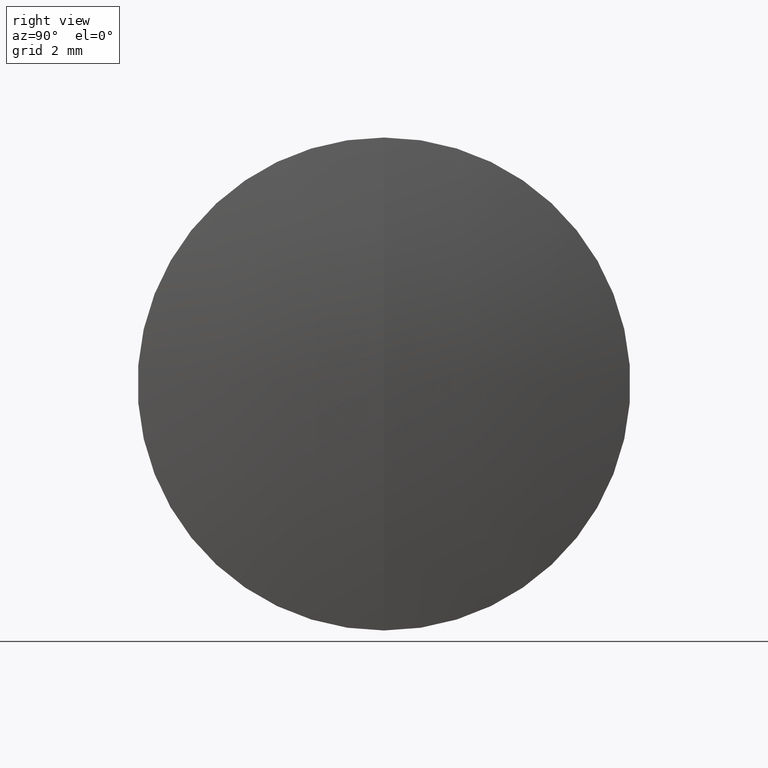
[diagram: clean part render]
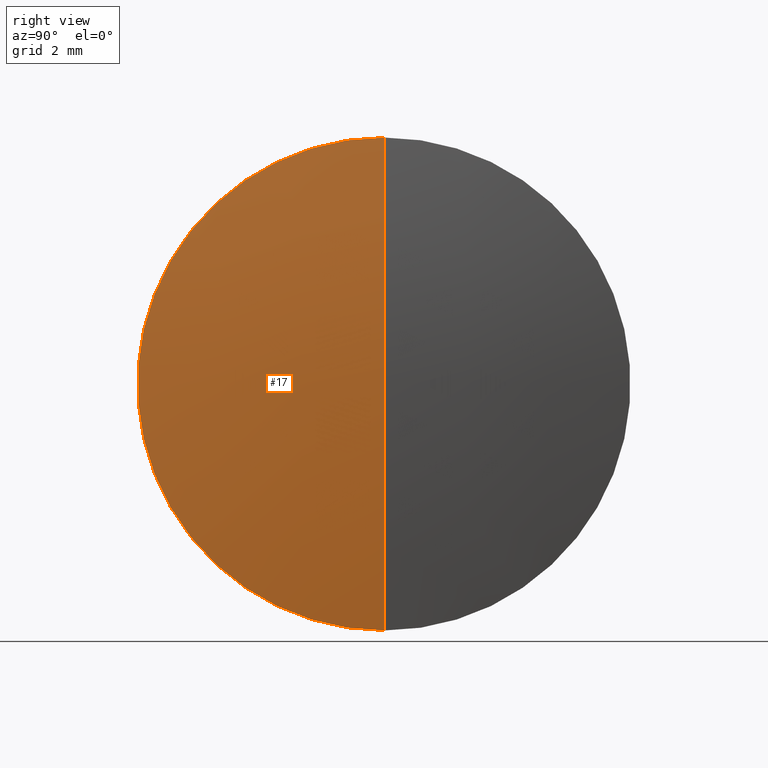
[diagram: same view with one face highlighted and labeled with its STEP entity id]
A machine part, right view. The second image highlights one B-rep face of the part: STEP entity #17.
In plain terms, the highlighted spherical surface has radius 32.651 mm.
Its self-contained STEP definition (entity closure, byte-faithful):
#17 = ADVANCED_FACE ( 'NONE', ( #211 ), #231, .T. ) ;
#19 = VERTEX_POINT ( 'NONE', #77 ) ;
#20 = VERTEX_POINT ( 'NONE', #62 ) ;
#38 = DIRECTION ( 'NONE',  ( -1.000000000000000000, -0.0000000000000000000, -0.0000000000000000000 ) ) ;
#48 = AXIS2_PLACEMENT_3D ( 'NONE', #256, #307, #329 ) ;
#53 = ORIENTED_EDGE ( 'NONE', *, *, #234, .F. ) ;
#62 = CARTESIAN_POINT ( 'NONE',  ( 5.980462902601981800, 6.123233995736762300E-016, -4.999999999999995600 ) ) ;
#65 = EDGE_CURVE ( 'NONE', #157, #19, #96, .T. ) ;
#77 = CARTESIAN_POINT ( 'NONE',  ( 5.980462902601981800, 0.0000000000000000000, 4.999999999999995600 ) ) ;
#89 = CIRCLE ( 'NONE', #252, 32.65100000000000300 ) ;
#96 = CIRCLE ( 'NONE', #48, 32.65100000000000300 ) ;
#98 = DIRECTION ( 'NONE',  ( 0.0000000000000000000, 0.0000000000000000000, 1.000000000000000000 ) ) ;
#113 = AXIS2_PLACEMENT_3D ( 'NONE', #180, #38, #98 ) ;
#119 = CARTESIAN_POINT ( 'NONE',  ( 6.365570678769087100, 0.0000000000000000000, 1.999297131948011600E-015 ) ) ;
#123 = DIRECTION ( 'NONE',  ( 0.0000000000000000000, 0.0000000000000000000, 1.000000000000000000 ) ) ;
#143 = DIRECTION ( 'NONE',  ( -0.0000000000000000000, 1.000000000000000000, 1.224646799147353200E-016 ) ) ;
#147 = ORIENTED_EDGE ( 'NONE', *, *, #308, .F. ) ;
#157 = VERTEX_POINT ( 'NONE', #119 ) ;
#175 = DIRECTION ( 'NONE',  ( 0.0000000000000000000, 1.000000000000000000, 0.0000000000000000000 ) ) ;
#180 = CARTESIAN_POINT ( 'NONE',  ( 5.980462902601981800, 0.0000000000000000000, 0.0000000000000000000 ) ) ;
#200 = CARTESIAN_POINT ( 'NONE',  ( -26.28542932123091800, 0.0000000000000000000, 0.0000000000000000000 ) ) ;
#211 = FACE_OUTER_BOUND ( 'NONE', #331, .T. ) ;
#231 = SPHERICAL_SURFACE ( 'NONE', #345, 32.65100000000000300 ) ;
#234 = EDGE_CURVE ( 'NONE', #20, #19, #266, .T. ) ;
#252 = AXIS2_PLACEMENT_3D ( 'NONE', #320, #143, #302 ) ;
#256 = CARTESIAN_POINT ( 'NONE',  ( -26.28542932123091800, 0.0000000000000000000, 0.0000000000000000000 ) ) ;
#266 = CIRCLE ( 'NONE', #113, 4.999999999999995600 ) ;
#273 = ORIENTED_EDGE ( 'NONE', *, *, #65, .T. ) ;
#302 = DIRECTION ( 'NONE',  ( 0.0000000000000000000, -1.224646799147353200E-016, 1.000000000000000000 ) ) ;
#307 = DIRECTION ( 'NONE',  ( 0.0000000000000000000, -1.000000000000000000, 0.0000000000000000000 ) ) ;
#308 = EDGE_CURVE ( 'NONE', #157, #20, #89, .T. ) ;
#320 = CARTESIAN_POINT ( 'NONE',  ( -26.28542932123091800, 0.0000000000000000000, 0.0000000000000000000 ) ) ;
#329 = DIRECTION ( 'NONE',  ( 0.0000000000000000000, 0.0000000000000000000, -1.000000000000000000 ) ) ;
#331 = EDGE_LOOP ( 'NONE', ( #147, #273, #53 ) ) ;
#345 = AXIS2_PLACEMENT_3D ( 'NONE', #200, #175, #123 ) ;